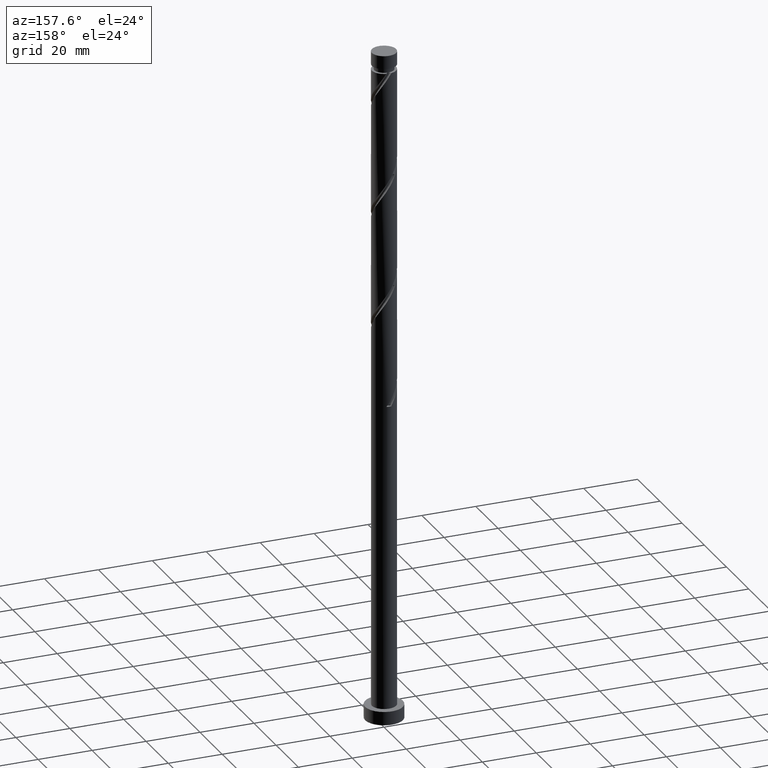
[diagram: clean part render]
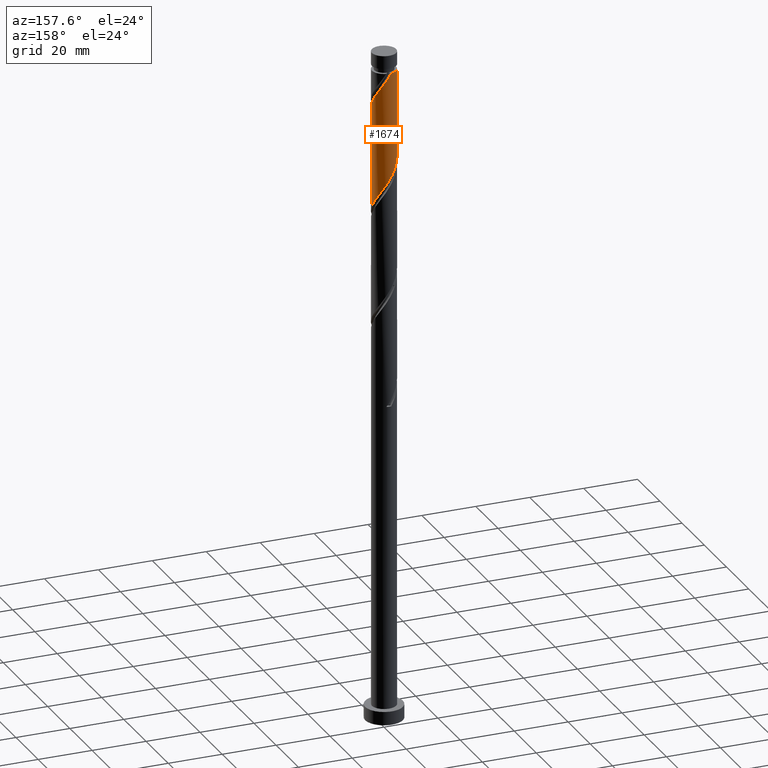
[diagram: same view with one face highlighted and labeled with its STEP entity id]
A machine part, auxiliary view. The second image highlights one B-rep face of the part: STEP entity #1674.
In plain terms, the highlighted cylindrical surface (edge-blend (fillet) strip) has radius 4.5 mm, axis along (-0, -0, -1).
Its self-contained STEP definition (entity closure, byte-faithful):
#32 = CARTESIAN_POINT ( 'NONE',  ( 0.000000000000000000, 0.000000000000000000, 250.0000000000000000 ) ) ;
#34 = VERTEX_POINT ( 'NONE', #709 ) ;
#52 = EDGE_LOOP ( 'NONE', ( #1333, #497, #1430, #771, #1428 ) ) ;
#78 =( BOUNDED_CURVE ( )  B_SPLINE_CURVE ( 2, ( #1390, #322, #1753, #1373, #1643, #1804, #386, #543, #1790, #1777, #941, #1090, #519, #135, #931, #506, #1369 ),
 .UNSPECIFIED., .F., .T. ) 
 B_SPLINE_CURVE_WITH_KNOTS ( ( 3, 2, 2, 2, 2, 2, 2, 2, 3 ),
 ( 0.6795271625973833274, 0.6826923076923077094, 0.6923076923076922906, 0.7019230769230768718, 0.7115384615384615641, 0.7211538461538461453, 0.7307692307692308376, 0.7403846153846154188, 0.7500000000000000000 ),
 .UNSPECIFIED. ) 
 CURVE ( )  GEOMETRIC_REPRESENTATION_ITEM ( )  RATIONAL_B_SPLINE_CURVE ( ( 0.9061636035682859580, 0.9069090390690746073, 0.9090909090909310430, 0.9024626128164345840, 0.9090909090909310430, 0.9024626128164345840, 0.9090909090909310430, 0.9024626128164345840, 0.9090909090909310430, 0.9024626128164345840, 0.9090909090909310430, 0.9024626128164345840, 0.9090909090909310430, 0.9024626128164345840, 0.9090909090909310430, 0.9024626128164345840, 0.9090909090909310430 ) ) 
 REPRESENTATION_ITEM ( '' )  );
#98 = CARTESIAN_POINT ( 'NONE',  ( -1.781179590981151195, 4.168447078873278144, 205.6962222877161821 ) ) ;
#105 = CARTESIAN_POINT ( 'NONE',  ( 0.3600177473857904542, 4.518732013105247525, 202.4910940825880061 ) ) ;
#115 = CARTESIAN_POINT ( 'NONE',  ( -3.120663290776435783, 3.242138279839463344, 208.1000684415623709 ) ) ;
#135 = CARTESIAN_POINT ( 'NONE',  ( 0.7318470675013464266, 4.473583759636639456, 240.9526325441264305 ) ) ;
#145 = CARTESIAN_POINT ( 'NONE',  ( 1.430959639406130801, 4.301267986894750983, 200.8885299800238329 ) ) ;
#228 = CARTESIAN_POINT ( 'NONE',  ( -4.485785369080543816, 0.3573928126626663704, 212.9077607492546349 ) ) ;
#235 = EDGE_CURVE ( 'NONE', #1573, #1779, #78, .T. ) ;
#250 = LINE ( 'NONE', #1798, #604 ) ;
#251 =( BOUNDED_CURVE ( )  B_SPLINE_CURVE ( 2, ( #949, #1665, #228, #1483, #400, #1511, #778, #958, #115, #1521, #668, #98, #652, #533, #1493, #105, #1223, #145, #442, #1007, #694, #1251, #1397, #1698, #1405, #295, #871, #1413, #1264 ),
 .UNSPECIFIED., .F., .T. ) 
 B_SPLINE_CURVE_WITH_KNOTS ( ( 3, 2, 2, 2, 2, 2, 2, 2, 2, 2, 2, 2, 2, 2, 3 ),
 ( 0.4295271625973832719, 0.4326923076923077094, 0.4423076923076922906, 0.4519230769230769273, 0.4615384615384615641, 0.4711538461538461453, 0.4807692307692307820, 0.4903846153846153633, 0.5000000000000000000, 0.5096153846153845812, 0.5192307692307692735, 0.5288461538461538547, 0.5384615384615384359, 0.5480769230769231282, 0.5545271625973834384 ),
 .UNSPECIFIED. ) 
 CURVE ( )  GEOMETRIC_REPRESENTATION_ITEM ( )  RATIONAL_B_SPLINE_CURVE ( ( 0.9061636035682794077, 0.9069090390690679460, 0.9090909090909243817, 0.9024626128164281447, 0.9090909090909243817, 0.9024626128164281447, 0.9090909090909243817, 0.9024626128164281447, 0.9090909090909243817, 0.9024626128164281447, 0.9090909090909243817, 0.9024626128164281447, 0.9090909090909243817, 0.9024626128164281447, 0.9090909090909243817, 0.9024626128164281447, 0.9090909090909243817, 0.9024626128164281447, 0.9090909090909243817, 0.9024626128164281447, 0.9090909090909243817, 0.9024626128164281447, 0.9090909090909243817, 0.9024626128164281447, 0.9090909090909243817, 0.9024626128164281447, 0.9090909090909243817, 0.9046444828382845804, 0.9061636035682794077 ) ) 
 REPRESENTATION_ITEM ( '' )  );
#290 = EDGE_CURVE ( 'NONE', #1224, #1468, #251, .T. ) ;
#295 = CARTESIAN_POINT ( 'NONE',  ( 4.352751881241014864, 1.265742013621944828, 194.4782735697674525 ) ) ;
#322 = CARTESIAN_POINT ( 'NONE',  ( 4.500000000000006217, 0.1789790865154566590, 231.8760610710469621 ) ) ;
#386 = CARTESIAN_POINT ( 'NONE',  ( 3.805876963273143510, 2.401104025323946622, 235.3436581851521510 ) ) ;
#387 = CARTESIAN_POINT ( 'NONE',  ( 0.000000000000000000, 0.000000000000000000, 243.3564786979726193 ) ) ;
#400 = CARTESIAN_POINT ( 'NONE',  ( -4.269906900464293109, 1.420526332514615797, 211.3051966466906038 ) ) ;
#442 = CARTESIAN_POINT ( 'NONE',  ( 1.924849498958487226, 4.067548943326836586, 200.0872479287418457 ) ) ;
#486 = CARTESIAN_POINT ( 'NONE',  ( 4.500000000000000000, -5.488829441716236904E-15, 192.6010672405311368 ) ) ;
#497 = ORIENTED_EDGE ( 'NONE', *, *, #1670, .T. ) ;
#506 = CARTESIAN_POINT ( 'NONE',  ( -0.3600177473857879007, 4.518732013105255518, 242.5551966466905753 ) ) ;
#519 = CARTESIAN_POINT ( 'NONE',  ( 1.256513329241252697, 4.321015419254962353, 240.1513504928444434 ) ) ;
#533 = CARTESIAN_POINT ( 'NONE',  ( -0.7318470675013426519, 4.473583759636633239, 204.0936581851521225 ) ) ;
#543 = CARTESIAN_POINT ( 'NONE',  ( 3.514330150595358138, 2.863221154104484523, 236.1449402364341381 ) ) ;
#559 = DIRECTION ( 'NONE',  ( -0.000000000000000000, -0.000000000000000000, -1.000000000000000000 ) ) ;
#596 = DIRECTION ( 'NONE',  ( -0.000000000000000000, -0.000000000000000000, -1.000000000000000000 ) ) ;
#604 = VECTOR ( 'NONE', #1522, 1000.000000000000000 ) ;
#652 = CARTESIAN_POINT ( 'NONE',  ( -1.256513329241247146, 4.321015419254954359, 204.8949402364341381 ) ) ;
#668 = CARTESIAN_POINT ( 'NONE',  ( -2.254088010969334199, 3.894751242223860821, 206.4975043389982829 ) ) ;
#694 = CARTESIAN_POINT ( 'NONE',  ( 2.842345048184794276, 3.488706727006353869, 198.4846838261777577 ) ) ;
#709 = CARTESIAN_POINT ( 'NONE',  ( -4.499999999999983125, 0.000000000000000000, 243.3564786979726193 ) ) ;
#729 = CARTESIAN_POINT ( 'NONE',  ( 4.500000000000000888, 5.510910596163089556E-16, 250.0000000000000000 ) ) ;
#771 = ORIENTED_EDGE ( 'NONE', *, *, #1819, .F. ) ;
#778 = CARTESIAN_POINT ( 'NONE',  ( -3.805876963273137292, 2.401104025323943514, 209.7026325441264873 ) ) ;
#871 = CARTESIAN_POINT ( 'NONE',  ( 4.440966297212221470, 0.7265110783912205328, 193.6769915184854369 ) ) ;
#875 = DIRECTION ( 'NONE',  ( -0.000000000000000000, -0.000000000000000000, -1.000000000000000000 ) ) ;
#931 = CARTESIAN_POINT ( 'NONE',  ( 0.1859146600577813724, 4.496157886370947487, 241.7539145954085313 ) ) ;
#941 = CARTESIAN_POINT ( 'NONE',  ( 2.254088010969340861, 3.894751242223866150, 238.5487863902803838 ) ) ;
#942 = DIRECTION ( 'NONE',  ( -1.000000000000000000, 0.000000000000000000, 0.000000000000000000 ) ) ;
#949 = CARTESIAN_POINT ( 'NONE',  ( -4.500000000000000000, -5.832816027981831026E-16, 213.4344005738644796 ) ) ;
#954 = CARTESIAN_POINT ( 'NONE',  ( -4.500000000000000000, -5.832816027981831026E-16, 213.4344005738644796 ) ) ;
#958 = CARTESIAN_POINT ( 'NONE',  ( -3.514330150595351476, 2.863221154104482302, 208.9013504928443297 ) ) ;
#1007 = CARTESIAN_POINT ( 'NONE',  ( 2.418739358510839654, 3.833829899758923521, 199.2859658774597449 ) ) ;
#1061 = CIRCLE ( 'NONE', #1599, 4.499999999999983125 ) ;
#1090 = CARTESIAN_POINT ( 'NONE',  ( 1.781179590981155192, 4.168447078873283473, 239.3500684415623709 ) ) ;
#1120 = VECTOR ( 'NONE', #875, 1000.000000000000000 ) ;
#1150 = AXIS2_PLACEMENT_3D ( 'NONE', #32, #596, #1271 ) ;
#1191 = CARTESIAN_POINT ( 'NONE',  ( -0.8954886933939181226, 4.409999999979448582, 243.3564786979726193 ) ) ;
#1223 = CARTESIAN_POINT ( 'NONE',  ( 0.8954886933959602668, 4.409999999999998366, 201.6898120313059906 ) ) ;
#1224 = VERTEX_POINT ( 'NONE', #954 ) ;
#1251 = CARTESIAN_POINT ( 'NONE',  ( 3.265950737858744457, 3.143583554253785994, 197.6834017748956853 ) ) ;
#1264 = CARTESIAN_POINT ( 'NONE',  ( 4.500000000000000000, -5.488829441716236904E-15, 192.6010672405311368 ) ) ;
#1271 = DIRECTION ( 'NONE',  ( -1.000000000000000000, 0.000000000000000000, 0.000000000000000000 ) ) ;
#1281 = LINE ( 'NONE', #729, #1120 ) ;
#1333 = ORIENTED_EDGE ( 'NONE', *, *, #235, .F. ) ;
#1337 = EDGE_CURVE ( 'NONE', #34, #1779, #1061, .T. ) ;
#1369 = CARTESIAN_POINT ( 'NONE',  ( -0.8954886933939181226, 4.409999999979448582, 243.3564786979726193 ) ) ;
#1373 = CARTESIAN_POINT ( 'NONE',  ( 4.442390024977666663, 0.9020657684858252034, 232.9398120313059621 ) ) ;
#1390 = CARTESIAN_POINT ( 'NONE',  ( 4.500000000000007105, 3.365086169989493475E-15, 231.6118901554140450 ) ) ;
#1397 = CARTESIAN_POINT ( 'NONE',  ( 3.594653834714478524, 2.707113556645249108, 196.8821197236136413 ) ) ;
#1400 = CARTESIAN_POINT ( 'NONE',  ( 4.500000000000007994, 3.365086169989493475E-15, 231.6118901554140450 ) ) ;
#1405 = CARTESIAN_POINT ( 'NONE',  ( 4.138054406405615282, 1.768192786329330302, 195.2795556210495533 ) ) ;
#1409 = FACE_OUTER_BOUND ( 'NONE', #52, .T. ) ;
#1413 = CARTESIAN_POINT ( 'NONE',  ( 4.500000000000000888, 0.3656539734166958655, 193.1407679778794488 ) ) ;
#1428 = ORIENTED_EDGE ( 'NONE', *, *, #1337, .T. ) ;
#1429 = CYLINDRICAL_SURFACE ( 'NONE', #1150, 4.500000000000000888 ) ;
#1430 = ORIENTED_EDGE ( 'NONE', *, *, #290, .F. ) ;
#1468 = VERTEX_POINT ( 'NONE', #486 ) ;
#1483 = CARTESIAN_POINT ( 'NONE',  ( -4.442390024977660445, 0.9020657684858254255, 212.1064786979726478 ) ) ;
#1493 = CARTESIAN_POINT ( 'NONE',  ( -0.1859146600577761543, 4.496157886370940382, 203.2923761338700785 ) ) ;
#1511 = CARTESIAN_POINT ( 'NONE',  ( -4.097423775950922220, 1.938986896543404725, 210.5039145954085029 ) ) ;
#1521 = CARTESIAN_POINT ( 'NONE',  ( -2.726996430957519202, 3.621055405574443942, 207.2987863902802701 ) ) ;
#1522 = DIRECTION ( 'NONE',  ( -0.000000000000000000, -0.000000000000000000, -1.000000000000000000 ) ) ;
#1573 = VERTEX_POINT ( 'NONE', #1400 ) ;
#1599 = AXIS2_PLACEMENT_3D ( 'NONE', #387, #559, #942 ) ;
#1643 = CARTESIAN_POINT ( 'NONE',  ( 4.269906900464300215, 1.420526332514613799, 233.7410940825880061 ) ) ;
#1665 = CARTESIAN_POINT ( 'NONE',  ( -4.500000000000000000, 0.1789790865154571309, 213.1702296582314773 ) ) ;
#1670 = EDGE_CURVE ( 'NONE', #1573, #1468, #1281, .T. ) ;
#1674 = ADVANCED_FACE ( 'NONE', ( #1409 ), #1429, .T. ) ;
#1698 = CARTESIAN_POINT ( 'NONE',  ( 3.923356931570213479, 2.270643559036710890, 196.0808376723315973 ) ) ;
#1753 = CARTESIAN_POINT ( 'NONE',  ( 4.485785369080551810, 0.3573928126626632062, 232.1385299800239181 ) ) ;
#1777 = CARTESIAN_POINT ( 'NONE',  ( 2.726996430957527640, 3.621055405574445274, 237.7475043389982545 ) ) ;
#1779 = VERTEX_POINT ( 'NONE', #1191 ) ;
#1790 = CARTESIAN_POINT ( 'NONE',  ( 3.120663290776442889, 3.242138279839466453, 236.9462222877161821 ) ) ;
#1798 = CARTESIAN_POINT ( 'NONE',  ( -4.500000000000000888, 0.000000000000000000, 250.0000000000000000 ) ) ;
#1804 = CARTESIAN_POINT ( 'NONE',  ( 4.097423775950930214, 1.938986896543405614, 234.5423761338700501 ) ) ;
#1819 = EDGE_CURVE ( 'NONE', #34, #1224, #250, .T. ) ;